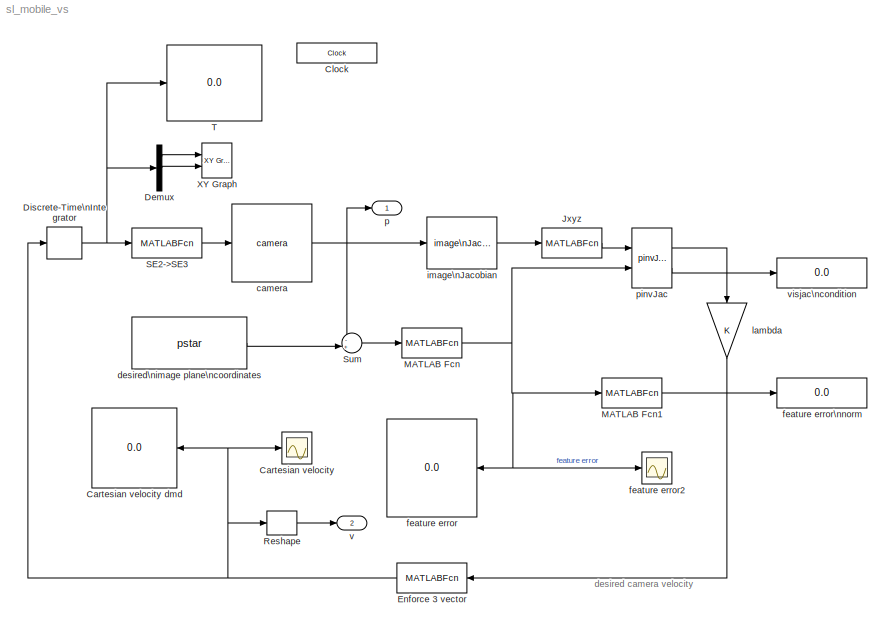
MODEL sl_mobile_vs
KIND model
CONFIG InitFcn = camera = CentralCamera('default', 'name', 'mobile_vs', 'focal', 0.002);\nT_vc = transl(0.2, 0.1, 0.3)*troty(pi/2)*trotz(-pi/2); %*trotx(-pi/4);   \nP = [0 0; 1 -1; 2 2];\npstar = camera.project(P, 'Tcam', transl(-2, 0, 0)*T_vc);
BLOCK [Scope] Cartesian velocity
  DataFormat = StructureWithTime
  Floating = off
  NumInputPorts = 1
  Ports = [1]
  SID = 50
  SampleTime = 0
  ShowLegends = off
  TimeRange = 20
  YMax = 1.9
  YMin = -0.4
  ZoomMode = yonly
BLOCK [Display] Cartesian velocity dmd
  Decimation = 1
  Format = short_e
  Ports = [1]
  SID = 1
BLOCK [Clock] Clock
  DisplayTime = on
  SID = 39
BLOCK [Demux] Demux
  DisplayOption = bar
  Outputs = 3
  Ports = [1, 3]
  SID = 59
BLOCK [DiscreteIntegrator] Discrete-Time\nIntegrator
  InitialCondition = [-8 2 0.3]'
  Ports = [1, 1]
  SID = 56
  SampleTime = 0.02
BLOCK [MATLABFcn] Enforce 3 vector
  MATLABFcn = u
  Output1D = off
  OutputDimensions = 3
  Ports = [1, 1]
  SID = 72
BLOCK [MATLABFcn] Jxyz
  MATLABFcn = [u(:,3) -u(:,1) -u(:,5)]
  Output1D = off
  Ports = [1, 1]
  SID = 55
BLOCK [MATLABFcn] MATLAB Fcn
  MATLABFcn = u(:)
  Output1D = off
  Ports = [1, 1]
  SID = 3
BLOCK [MATLABFcn] MATLAB Fcn1
  MATLABFcn = norm(u)
  Ports = [1, 1]
  SID = 4
BLOCK [Reshape] Reshape
  OutputDimensionality = Customize
  OutputDimensions = 3
  Ports = [1, 1]
  SID = 67
BLOCK [MATLABFcn] SE2->SE3
  MATLABFcn = se3(se2(u))*T_vc
  Output1D = off
  Ports = [1, 1]
  SID = 71
BLOCK [Sum] Sum
  IconShape = round
  Inputs = -+|
  Ports = [2, 1]
  SID = 10
BLOCK [Display] T
  Decimation = 1
  Ports = [1]
  SID = 40
BLOCK [Reference] XY Graph  REF=simulink/Sinks/XY Graph
  Ports = [2]
  SID = 58
  SourceBlock = simulink/Sinks/XY Graph
  SourceType = XY scope.
  st = -1
  xmax = 10
  xmin = -10
  ymax = 10
  ymin = -10
BLOCK [Reference] camera  REF=roblocks/Vision/camera  (lib defined in mdl_2a292b13c81b, mdl_69400f8cfe22, +12 more)
  Ports = [1, 1]
  SID = 47
  SourceBlock = roblocks/Vision/camera
  cam = camera
  points = P
BLOCK [Constant] desired\nimage plane\ncoordinates
  SID = 16
  Value = pstar
  VectorParams1D = off
BLOCK [Display] feature error
  Decimation = 1
  Format = bank
  Ports = [1]
  SID = 17
BLOCK [Scope] feature error2
  DataFormat = StructureWithTime
  Floating = off
  NumInputPorts = 1
  Ports = [1]
  SID = 19
  SampleTime = 0
  SaveName = ScopeData1
  ShowLegends = off
  TimeRange = 20
  YMax = 150
  YMin = -150
  ZoomMode = yonly
BLOCK [Display] feature error\nnorm
  Decimation = 1
  Ports = [1]
  SID = 18
BLOCK [Reference] image\nJacobian  REF=roblocks/Vision/image\nJacobian  (lib defined in mdl_2a292b13c81b, mdl_69400f8cfe22, +12 more)
  Ports = [1, 1]
  SID = 65
  SourceBlock = roblocks/Vision/image\nJacobian
  cam = camera
  z = 2
BLOCK [Gain] lambda
  SID = 51
BLOCK [Outport] p
  IconDisplay = Port number
  SID = 52
BLOCK [Reference] pinvJac  REF=roblocks/Vision/pinvJac  (lib defined in mdl_2a292b13c81b, mdl_69400f8cfe22, +12 more)
  Ports = [2, 2]
  SID = 66
  SourceBlock = roblocks/Vision/pinvJac
BLOCK [Outport] v
  IconDisplay = Port number
  Port = 2
  SID = 53
BLOCK [Display] visjac\ncondition
  Decimation = 1
  Ports = [1]
  SID = 26
ANNOTATION (root): desired camera velocity
LINE Demux:1 -> XY Graph:1
LINE Demux:2 -> XY Graph:2
NET Discrete-Time\nIntegrator:1 -> Demux:1, SE2->SE3:1, T:1
NET Enforce 3 vector:1 -> Cartesian velocity dmd:1, Cartesian velocity:1, Discrete-Time\nIntegrator:1, Reshape:1
LINE Jxyz:1 -> pinvJac:1
LINE MATLAB Fcn1:1 -> feature error\nnorm:1
NET MATLAB Fcn:1 -> MATLAB Fcn1:1, feature error2:1, feature error:1, pinvJac:2
LINE Reshape:1 -> v:1
LINE SE2->SE3:1 -> camera:1
LINE Sum:1 -> MATLAB Fcn:1
NET camera:1 -> Sum:1, image\nJacobian:1, p:1
LINE desired\nimage plane\ncoordinates:1 -> Sum:2
LINE image\nJacobian:1 -> Jxyz:1
LINE lambda:1 -> Enforce 3 vector:1
LINE pinvJac:1 -> lambda:1
LINE pinvJac:2 -> visjac\ncondition:1
note: NET lines group one-source signal fan-out (src -> all destinations, sorted); 1:1 wires keep LINE
